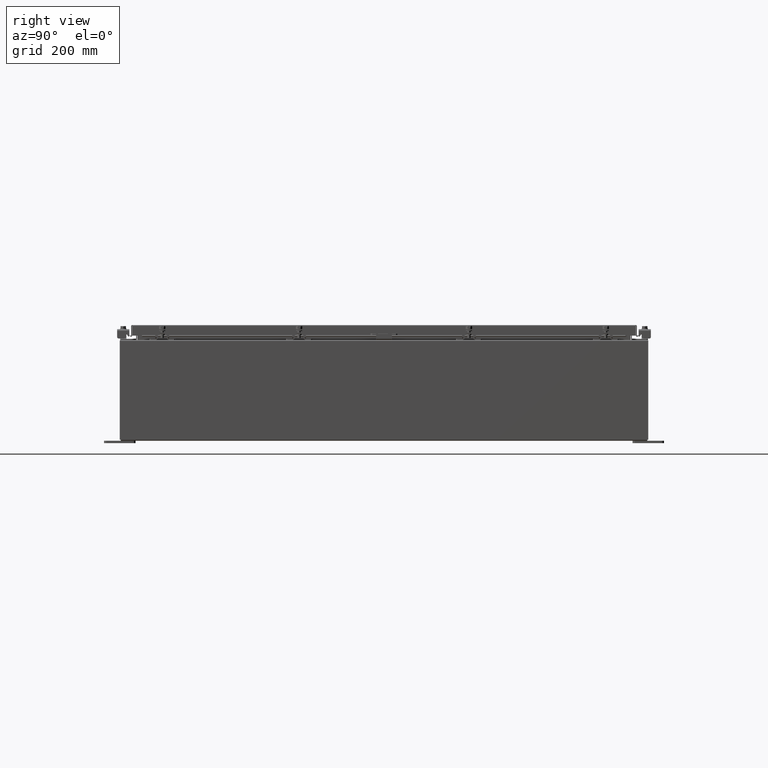
[diagram: clean part render]
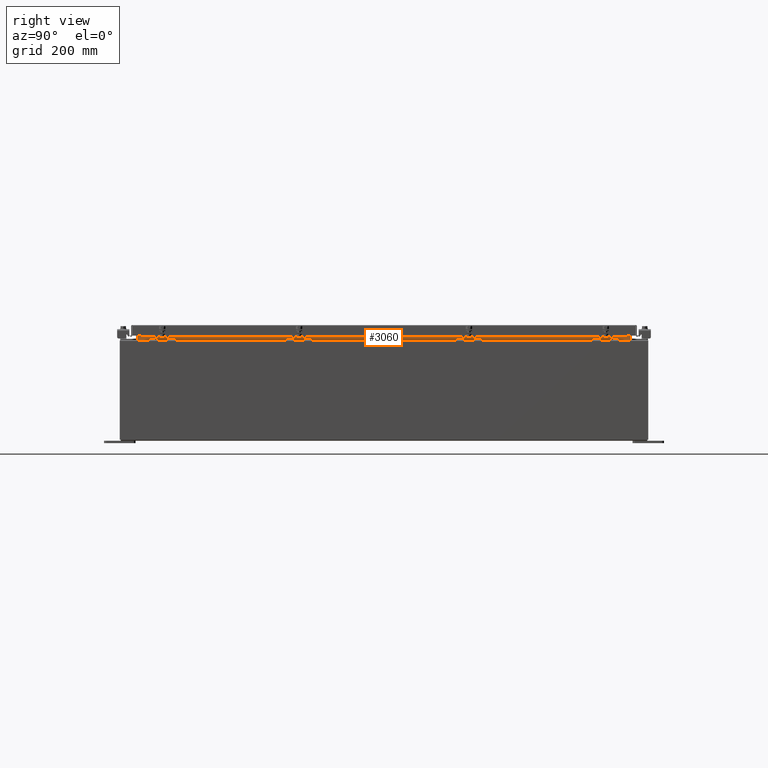
[diagram: same view with one face highlighted and labeled with its STEP entity id]
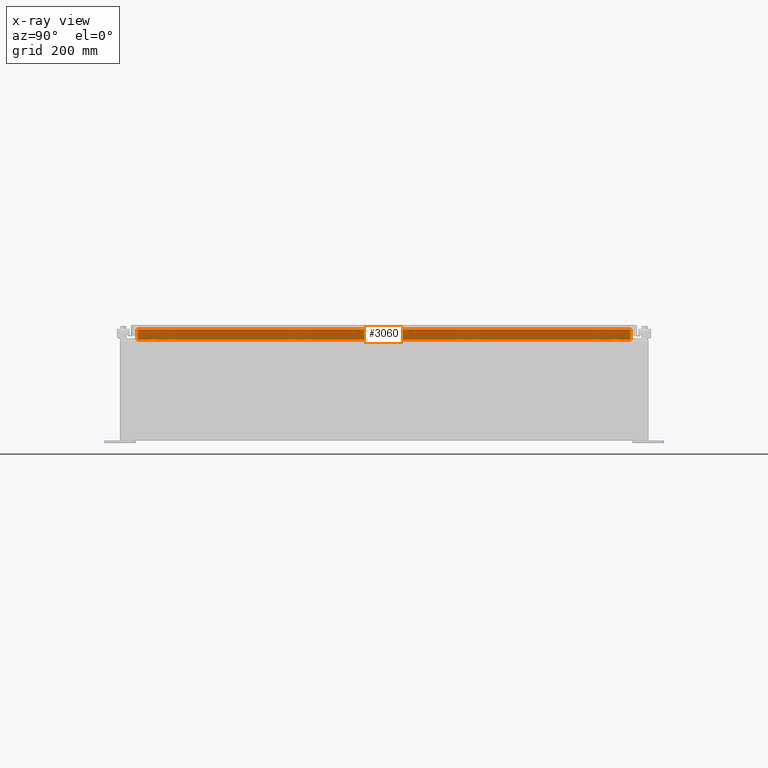
[diagram: x-ray of the same camera — body ghosted, the highlighted face saturated]
A machine part, right view. The second image highlights one B-rep face of the part: STEP entity #3060.
The next image is the same camera in x-ray: the body ghosted, the highlighted face saturated — about 0% of this face is hidden behind the body in this view.
In plain terms, the highlighted planar face has unit normal (1, -0, -0).
Its self-contained STEP definition (entity closure, byte-faithful):
#1038 = ORIENTED_EDGE ( 'NONE', *, *, #28606, .F. ) ;
#2381 = VECTOR ( 'NONE', #14043, 39.37007874015748100 ) ;
#2808 = CARTESIAN_POINT ( 'NONE',  ( 16.69970000000001100, -1.099870587577123400E-030, -3.944324386883832200E-014 ) ) ;
#3060 = ADVANCED_FACE ( 'NONE', ( #41243 ), #25614, .T. ) ;
#3586 = EDGE_LOOP ( 'NONE', ( #6914, #40611, #27850, #1038 ) ) ;
#6449 = DIRECTION ( 'NONE',  ( 1.115395672054309000E-016, -1.000000000000000000, 1.673093508081463600E-016 ) ) ;
#6639 = DIRECTION ( 'NONE',  ( -2.361913319930196000E-015, 0.0000000000000000000, -1.000000000000000000 ) ) ;
#6914 = ORIENTED_EDGE ( 'NONE', *, *, #22619, .F. ) ;
#10061 = VERTEX_POINT ( 'NONE', #20031 ) ;
#11961 = CARTESIAN_POINT ( 'NONE',  ( 16.69970000000003600, -19.59374999999999600, 8.850600000000008900 ) ) ;
#12897 = CARTESIAN_POINT ( 'NONE',  ( 16.69970000000003200, -19.59375000000000000, 7.938300000000011500 ) ) ;
#13914 = CARTESIAN_POINT ( 'NONE',  ( 16.69970000000003200, 19.59374999999997900, 7.938300000000008800 ) ) ;
#14043 = DIRECTION ( 'NONE',  ( 0.0000000000000000000, 1.000000000000000000, 0.0000000000000000000 ) ) ;
#14324 = LINE ( 'NONE', #11961, #42390 ) ;
#14568 = CARTESIAN_POINT ( 'NONE',  ( 16.69970000000003600, 19.59374999999998200, 8.762900000000009000 ) ) ;
#15096 = DIRECTION ( 'NONE',  ( -2.361913319930196000E-015, -0.0000000000000000000, -1.000000000000000000 ) ) ;
#18938 = CARTESIAN_POINT ( 'NONE',  ( 16.69970000000003200, 19.59374999999997900, 7.925300000000008900 ) ) ;
#20031 = CARTESIAN_POINT ( 'NONE',  ( 16.69970000000003600, -19.59374999999999600, 8.762900000000009000 ) ) ;
#20920 = AXIS2_PLACEMENT_3D ( 'NONE', #2808, #29476, #6639 ) ;
#22619 = EDGE_CURVE ( 'NONE', #23241, #34583, #48109, .T. ) ;
#23241 = VERTEX_POINT ( 'NONE', #14568 ) ;
#25614 = PLANE ( 'NONE',  #20920 ) ;
#26341 = EDGE_CURVE ( 'NONE', #30323, #10061, #14324, .T. ) ;
#27437 = EDGE_CURVE ( 'NONE', #10061, #23241, #42970, .T. ) ;
#27746 = VECTOR ( 'NONE', #15096, 39.37007874015748100 ) ;
#27850 = ORIENTED_EDGE ( 'NONE', *, *, #26341, .F. ) ;
#28606 = EDGE_CURVE ( 'NONE', #34583, #30323, #47730, .T. ) ;
#29476 = DIRECTION ( 'NONE',  ( 1.000000000000000000, -6.586169737043914400E-032, -2.361913319930196000E-015 ) ) ;
#30323 = VERTEX_POINT ( 'NONE', #12897 ) ;
#34583 = VERTEX_POINT ( 'NONE', #46767 ) ;
#36908 = CARTESIAN_POINT ( 'NONE',  ( 16.69970000000003600, -19.59375000000000000, 8.762900000000009000 ) ) ;
#37519 = VECTOR ( 'NONE', #6449, 39.37007874015748100 ) ;
#40611 = ORIENTED_EDGE ( 'NONE', *, *, #27437, .F. ) ;
#41243 = FACE_OUTER_BOUND ( 'NONE', #3586, .T. ) ;
#42390 = VECTOR ( 'NONE', #42515, 39.37007874015748100 ) ;
#42515 = DIRECTION ( 'NONE',  ( 2.361913319930201500E-015, -0.0000000000000000000, 1.000000000000000000 ) ) ;
#42970 = LINE ( 'NONE', #36908, #2381 ) ;
#46767 = CARTESIAN_POINT ( 'NONE',  ( 16.69970000000003200, 19.59374999999998200, 7.938300000000011500 ) ) ;
#47730 = LINE ( 'NONE', #13914, #37519 ) ;
#48109 = LINE ( 'NONE', #18938, #27746 ) ;